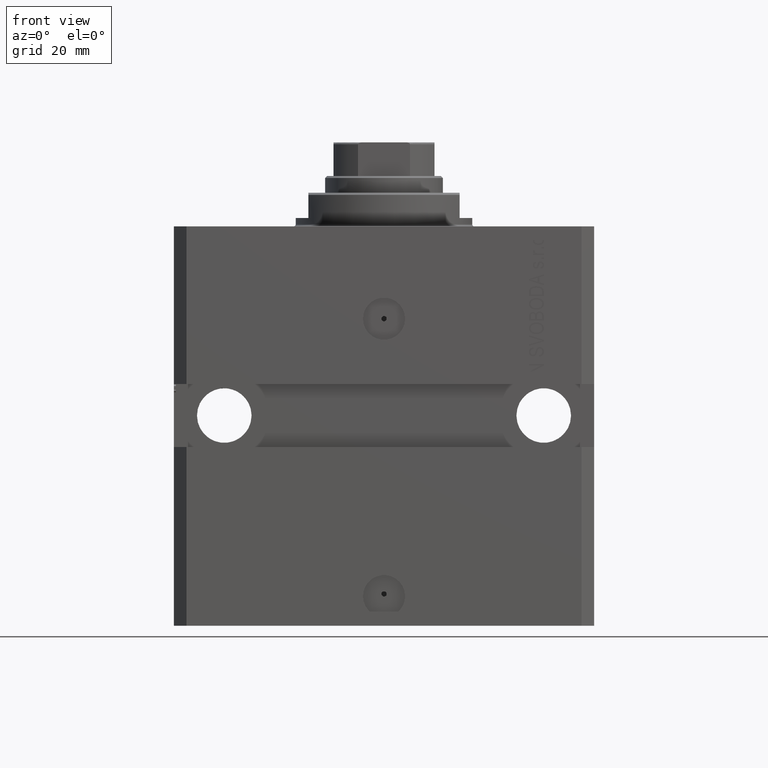
[diagram: clean part render]
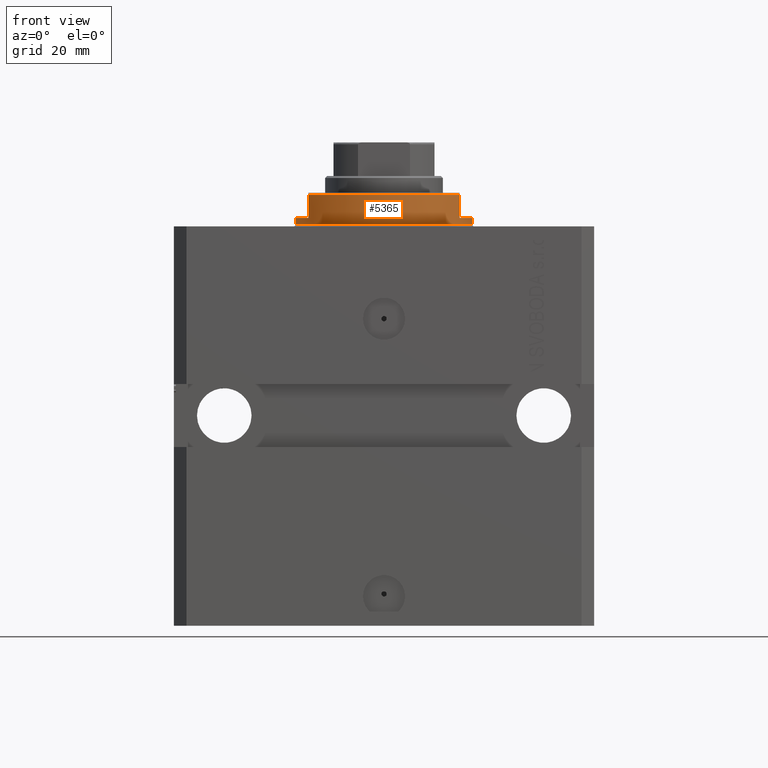
[diagram: same view with one face highlighted and labeled with its STEP entity id]
A machine part, front view. The second image highlights one B-rep face of the part: STEP entity #5365.
In plain terms, the highlighted cylindrical surface (partial cylindrical patch) has radius 21 mm, axis along (0, 0, -1).
Its self-contained STEP definition (entity closure, byte-faithful):
#1839 = CARTESIAN_POINT ( 'NONE',  ( 0.000000000000000000, 0.000000000000000000, -0.5000000000000004441 ) ) ;
#2168 = LINE ( 'NONE', #12812, #47359 ) ;
#2295 = LINE ( 'NONE', #35587, #14648 ) ;
#3604 = CARTESIAN_POINT ( 'NONE',  ( 21.00000000000000000, 0.000000000000000000, -2.000000000000000000 ) ) ;
#4391 = CARTESIAN_POINT ( 'NONE',  ( 0.000000000000000000, 0.000000000000000000, -2.000000000000000000 ) ) ;
#5365 = ADVANCED_FACE ( 'NONE', ( #8992 ), #38431, .T. ) ;
#5613 = EDGE_CURVE ( 'NONE', #21679, #29662, #2168, .T. ) ;
#7677 = AXIS2_PLACEMENT_3D ( 'NONE', #4391, #45137, #23460 ) ;
#7758 = DIRECTION ( 'NONE',  ( -1.000000000000000000, 0.000000000000000000, 0.000000000000000000 ) ) ;
#7868 = ORIENTED_EDGE ( 'NONE', *, *, #5613, .T. ) ;
#8280 = EDGE_CURVE ( 'NONE', #17983, #37755, #34231, .T. ) ;
#8992 = FACE_OUTER_BOUND ( 'NONE', #40907, .T. ) ;
#9016 = LINE ( 'NONE', #39160, #28420 ) ;
#9106 = AXIS2_PLACEMENT_3D ( 'NONE', #36751, #22058, #18191 ) ;
#9322 = DIRECTION ( 'NONE',  ( -0.000000000000000000, -0.000000000000000000, -1.000000000000000000 ) ) ;
#9428 = CARTESIAN_POINT ( 'NONE',  ( -18.00000000000000000, -10.81665382639197048, -7.500000000000017764 ) ) ;
#9507 = VERTEX_POINT ( 'NONE', #3604 ) ;
#12095 = ORIENTED_EDGE ( 'NONE', *, *, #21753, .T. ) ;
#12717 = DIRECTION ( 'NONE',  ( 1.000000000000000000, 0.000000000000000000, 0.000000000000000000 ) ) ;
#12812 = CARTESIAN_POINT ( 'NONE',  ( -18.00000000000000000, -10.81665382639197048, -8.000000000000000000 ) ) ;
#13046 = DIRECTION ( 'NONE',  ( 0.000000000000000000, 0.000000000000000000, -1.000000000000000000 ) ) ;
#13433 = AXIS2_PLACEMENT_3D ( 'NONE', #1839, #9322, #12717 ) ;
#14089 = CARTESIAN_POINT ( 'NONE',  ( 21.00000000000000000, 0.000000000000000000, -8.000000000000000000 ) ) ;
#14613 = ORIENTED_EDGE ( 'NONE', *, *, #44137, .T. ) ;
#14648 = VECTOR ( 'NONE', #31972, 1000.000000000000000 ) ;
#16166 = CARTESIAN_POINT ( 'NONE',  ( 18.00000000000000000, -10.81665382639197048, -7.500000000000016875 ) ) ;
#17714 = CARTESIAN_POINT ( 'NONE',  ( -18.00000000000000000, -10.81665382639197048, -2.000000000000000000 ) ) ;
#17983 = VERTEX_POINT ( 'NONE', #20506 ) ;
#18175 = ORIENTED_EDGE ( 'NONE', *, *, #39318, .F. ) ;
#18191 = DIRECTION ( 'NONE',  ( -1.000000000000000000, 0.000000000000000000, 0.000000000000000000 ) ) ;
#18424 = CIRCLE ( 'NONE', #29193, 21.00000000000000000 ) ;
#20506 = CARTESIAN_POINT ( 'NONE',  ( 21.00000000000000000, 0.000000000000000000, -0.5000000000000004441 ) ) ;
#20773 = CIRCLE ( 'NONE', #7677, 21.00000000000000000 ) ;
#21679 = VERTEX_POINT ( 'NONE', #17714 ) ;
#21753 = EDGE_CURVE ( 'NONE', #29662, #24002, #37630, .T. ) ;
#22058 = DIRECTION ( 'NONE',  ( 0.000000000000000000, 0.000000000000000000, 1.000000000000000000 ) ) ;
#23460 = DIRECTION ( 'NONE',  ( -1.000000000000000000, 0.000000000000000000, 0.000000000000000000 ) ) ;
#24002 = VERTEX_POINT ( 'NONE', #16166 ) ;
#24422 = EDGE_CURVE ( 'NONE', #9507, #32061, #20773, .T. ) ;
#28420 = VECTOR ( 'NONE', #38455, 1000.000000000000000 ) ;
#28851 = EDGE_CURVE ( 'NONE', #32061, #24002, #2295, .T. ) ;
#29193 = AXIS2_PLACEMENT_3D ( 'NONE', #41269, #30194, #7758 ) ;
#29662 = VERTEX_POINT ( 'NONE', #9428 ) ;
#30194 = DIRECTION ( 'NONE',  ( 0.000000000000000000, 0.000000000000000000, -1.000000000000000000 ) ) ;
#30529 = ORIENTED_EDGE ( 'NONE', *, *, #28851, .F. ) ;
#31197 = CARTESIAN_POINT ( 'NONE',  ( -21.00000000000000000, 2.571758278209441661E-15, -2.000000000000000000 ) ) ;
#31972 = DIRECTION ( 'NONE',  ( 0.000000000000000000, 0.000000000000000000, -1.000000000000000000 ) ) ;
#32061 = VERTEX_POINT ( 'NONE', #38318 ) ;
#32135 = DIRECTION ( 'NONE',  ( 1.000000000000000000, 0.000000000000000000, 0.000000000000000000 ) ) ;
#32849 = CARTESIAN_POINT ( 'NONE',  ( 0.000000000000000000, 0.000000000000000000, -8.000000000000000000 ) ) ;
#34231 = CIRCLE ( 'NONE', #13433, 21.00000000000000000 ) ;
#35587 = CARTESIAN_POINT ( 'NONE',  ( 18.00000000000000000, -10.81665382639197048, -8.000000000000000000 ) ) ;
#36751 = CARTESIAN_POINT ( 'NONE',  ( 0.000000000000000000, 0.000000000000000000, -7.500000000000016875 ) ) ;
#37019 = VERTEX_POINT ( 'NONE', #31197 ) ;
#37630 = CIRCLE ( 'NONE', #9106, 21.00000000000000000 ) ;
#37755 = VERTEX_POINT ( 'NONE', #40726 ) ;
#38318 = CARTESIAN_POINT ( 'NONE',  ( 18.00000000000000000, -10.81665382639197048, -2.000000000000000000 ) ) ;
#38431 = CYLINDRICAL_SURFACE ( 'NONE', #45694, 21.00000000000000000 ) ;
#38455 = DIRECTION ( 'NONE',  ( -0.000000000000000000, -0.000000000000000000, 1.000000000000000000 ) ) ;
#39160 = CARTESIAN_POINT ( 'NONE',  ( -21.00000000000000000, 2.571758278209441661E-15, -8.000000000000000000 ) ) ;
#39318 = EDGE_CURVE ( 'NONE', #21679, #37019, #18424, .T. ) ;
#39874 = DIRECTION ( 'NONE',  ( -0.000000000000000000, -0.000000000000000000, 1.000000000000000000 ) ) ;
#40361 = LINE ( 'NONE', #14089, #40752 ) ;
#40726 = CARTESIAN_POINT ( 'NONE',  ( -21.00000000000000000, 2.571758278209441661E-15, -0.5000000000000004441 ) ) ;
#40752 = VECTOR ( 'NONE', #39874, 1000.000000000000000 ) ;
#40907 = EDGE_LOOP ( 'NONE', ( #47024, #18175, #7868, #12095, #30529, #45815, #14613, #44954 ) ) ;
#41269 = CARTESIAN_POINT ( 'NONE',  ( 0.000000000000000000, 0.000000000000000000, -2.000000000000000000 ) ) ;
#43280 = EDGE_CURVE ( 'NONE', #37019, #37755, #9016, .T. ) ;
#44137 = EDGE_CURVE ( 'NONE', #9507, #17983, #40361, .T. ) ;
#44954 = ORIENTED_EDGE ( 'NONE', *, *, #8280, .T. ) ;
#45137 = DIRECTION ( 'NONE',  ( 0.000000000000000000, 0.000000000000000000, -1.000000000000000000 ) ) ;
#45694 = AXIS2_PLACEMENT_3D ( 'NONE', #32849, #47070, #32135 ) ;
#45815 = ORIENTED_EDGE ( 'NONE', *, *, #24422, .F. ) ;
#47024 = ORIENTED_EDGE ( 'NONE', *, *, #43280, .F. ) ;
#47070 = DIRECTION ( 'NONE',  ( -0.000000000000000000, -0.000000000000000000, 1.000000000000000000 ) ) ;
#47359 = VECTOR ( 'NONE', #13046, 1000.000000000000000 ) ;